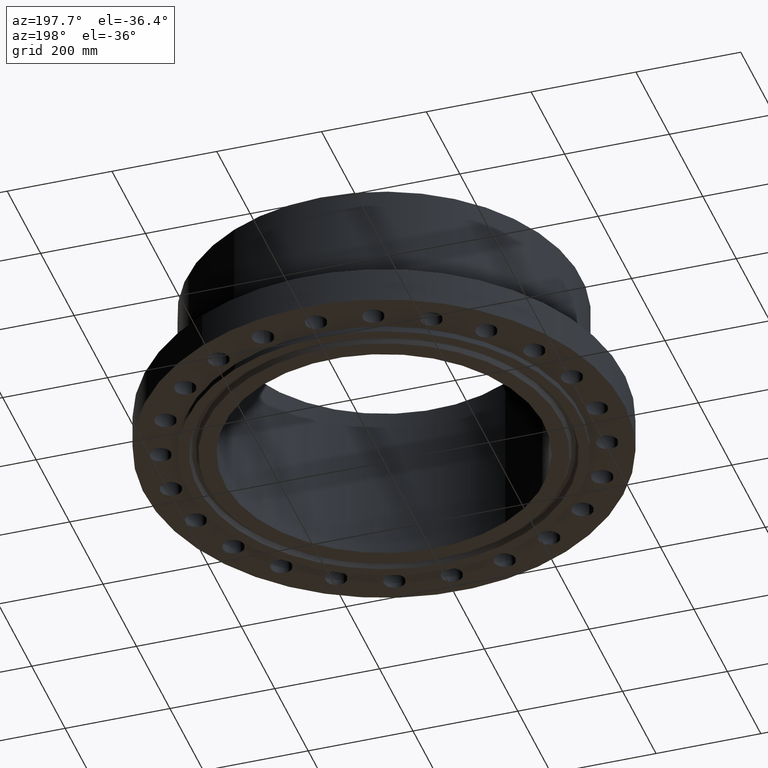
[diagram: clean part render]
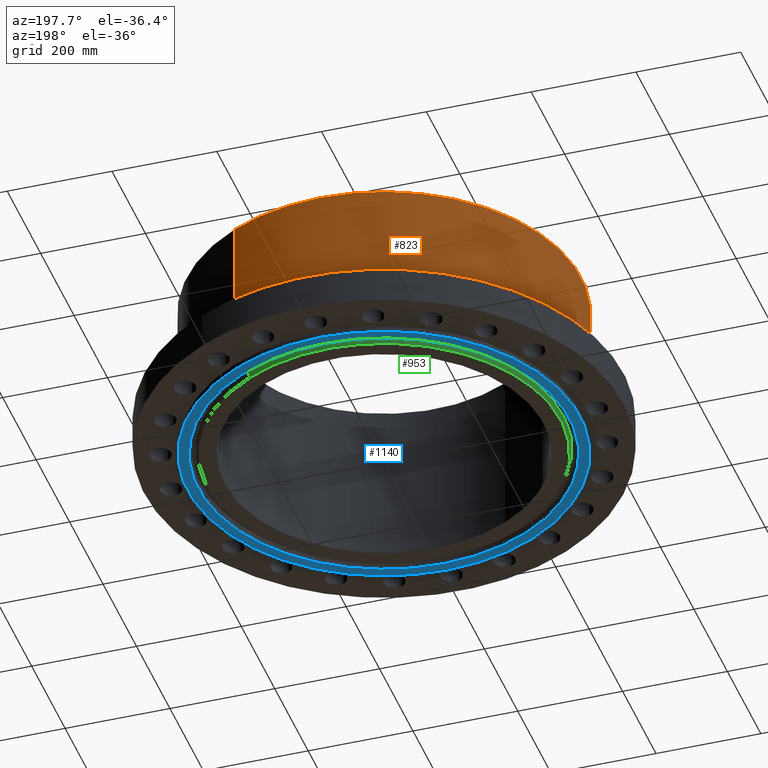
[diagram: same view with three faces highlighted in distinct colors, each labeled with its STEP entity id]
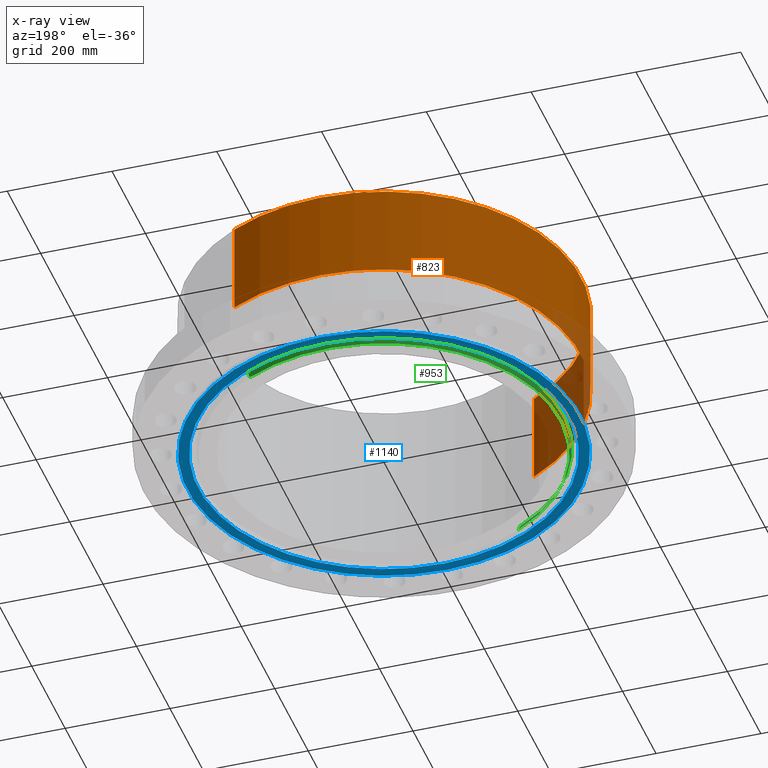
[diagram: x-ray of the same camera — body ghosted, the three highlighted faces saturated]
A machine part, auxiliary view with three faces highlighted in distinct colors.
The next image is the same camera in x-ray (body ghosted, the three faces saturated) — at least one of them is partly hidden behind the body in this view.
Their STEP definitions:

[orange] entity #823 — the highlighted cylindrical surface (partial cylindrical patch) has radius 376.174 mm, axis along (0, 0, -1).
#771=AXIS2_PLACEMENT_3D('Circle Axis2P3D',#769,#770,$) ;
#784=AXIS2_PLACEMENT_3D('Cylinder Axis2P3D',#781,#782,#783) ;
#814=AXIS2_PLACEMENT_3D('Circle Axis2P3D',#812,#813,$) ;
#747=CARTESIAN_POINT('Vertex',(7.10029222676,12.9969977416,5.01485026921)) ;
#754=CARTESIAN_POINT('Vertex',(-7.10029222676,-12.9969977416,5.01485026921)) ;
#769=CARTESIAN_POINT('Axis2P3D Location',(0.,0.,5.01485026921)) ;
#781=CARTESIAN_POINT('Axis2P3D Location',(0.,0.,5.74975000002)) ;
#786=CARTESIAN_POINT('Line Origine',(7.10029222676,12.9969977416,8.47617513463)) ;
#790=CARTESIAN_POINT('Vertex',(7.10029222676,12.9969977416,11.9375)) ;
#797=CARTESIAN_POINT('Vertex',(-7.10029222676,-12.9969977416,11.9375)) ;
#800=CARTESIAN_POINT('Line Origine',(-7.10029222676,-12.9969977416,8.47617513463)) ;
#812=CARTESIAN_POINT('Axis2P3D Location',(0.,0.,11.9375)) ;
#770=DIRECTION('Axis2P3D Direction',(-0.,0.,0.0393700787402)) ;
#782=DIRECTION('Axis2P3D Direction',(0.,0.,-0.0393700787402)) ;
#783=DIRECTION('Axis2P3D XDirection',(-0.0188750212049,-0.0345504945626,0.)) ;
#787=DIRECTION('Vector Direction',(0.,0.,-0.0393700787402)) ;
#801=DIRECTION('Vector Direction',(0.,0.,-0.0393700787402)) ;
#813=DIRECTION('Axis2P3D Direction',(0.,0.,-0.0393700787402)) ;
#788=VECTOR('Line Direction',#787,0.0393700787402) ;
#802=VECTOR('Line Direction',#801,0.0393700787402) ;
#818=ORIENTED_EDGE('',*,*,#773,.F.) ;
#819=ORIENTED_EDGE('',*,*,#804,.T.) ;
#820=ORIENTED_EDGE('',*,*,#816,.T.) ;
#821=ORIENTED_EDGE('',*,*,#792,.F.) ;
#823=ADVANCED_FACE('PartBody',(#822),#785,.T.) ;
#772=CIRCLE('generated circle',#771,14.8100000001) ;
#815=CIRCLE('generated circle',#814,14.8100000001) ;
#785=CYLINDRICAL_SURFACE('generated cylinder',#784,14.8100000001) ;
#773=EDGE_CURVE('',#755,#748,#772,.F.) ;
#792=EDGE_CURVE('',#748,#791,#789,.F.) ;
#804=EDGE_CURVE('',#755,#798,#803,.F.) ;
#816=EDGE_CURVE('',#798,#791,#815,.T.) ;
#817=EDGE_LOOP('',(#818,#819,#820,#821)) ;
#822=FACE_OUTER_BOUND('',#817,.T.) ;
#789=LINE('Line',#786,#788) ;
#803=LINE('Line',#800,#802) ;
#748=VERTEX_POINT('',#747) ;
#755=VERTEX_POINT('',#754) ;
#791=VERTEX_POINT('',#790) ;
#798=VERTEX_POINT('',#797) ;

[blue] entity #1140 — the highlighted planar face has unit normal (0, 0, -1).
#898=AXIS2_PLACEMENT_3D('Plane Axis2P3D',#895,#896,#897) ;
#1089=AXIS2_PLACEMENT_3D('Circle Axis2P3D',#1087,#1088,$) ;
#1108=AXIS2_PLACEMENT_3D('Circle Axis2P3D',#1106,#1107,$) ;
#1120=AXIS2_PLACEMENT_3D('Circle Axis2P3D',#1118,#1119,$) ;
#1129=AXIS2_PLACEMENT_3D('Circle Axis2P3D',#1127,#1128,$) ;
#895=CARTESIAN_POINT('Axis2P3D Location',(0.,13.2970000001,-0.438000000002)) ;
#1084=CARTESIAN_POINT('Vertex',(-6.68942454017,-12.2449094861,-0.438000000002)) ;
#1087=CARTESIAN_POINT('Axis2P3D Location',(0.,0.,-0.438000000002)) ;
#1091=CARTESIAN_POINT('Vertex',(6.68942454017,12.2449094861,-0.438000000002)) ;
#1106=CARTESIAN_POINT('Axis2P3D Location',(0.,0.,-0.438000000002)) ;
#1118=CARTESIAN_POINT('Axis2P3D Location',(0.,0.,-0.438000000002)) ;
#1122=CARTESIAN_POINT('Vertex',(-7.07152669444,-12.9443427879,-0.438000000002)) ;
#1124=CARTESIAN_POINT('Vertex',(7.07152669444,12.9443427879,-0.438000000002)) ;
#1127=CARTESIAN_POINT('Axis2P3D Location',(0.,0.,-0.438000000002)) ;
#896=DIRECTION('Axis2P3D Direction',(0.,0.,-0.0393700787402)) ;
#897=DIRECTION('Axis2P3D XDirection',(0.0393700787402,0.,0.)) ;
#1088=DIRECTION('Axis2P3D Direction',(0.,0.,-0.0393700787402)) ;
#1107=DIRECTION('Axis2P3D Direction',(0.,0.,-0.0393700787402)) ;
#1119=DIRECTION('Axis2P3D Direction',(0.,0.,-0.0393700787402)) ;
#1128=DIRECTION('Axis2P3D Direction',(0.,0.,-0.0393700787402)) ;
#1133=ORIENTED_EDGE('',*,*,#1126,.T.) ;
#1134=ORIENTED_EDGE('',*,*,#1131,.T.) ;
#1137=ORIENTED_EDGE('',*,*,#1110,.F.) ;
#1138=ORIENTED_EDGE('',*,*,#1093,.F.) ;
#1139=FACE_BOUND('',#1136,.T.) ;
#1140=ADVANCED_FACE('PartBody',(#1135,#1139),#899,.T.) ;
#1090=CIRCLE('generated circle',#1089,13.9530000001) ;
#1109=CIRCLE('generated circle',#1108,13.9530000001) ;
#1121=CIRCLE('generated circle',#1120,14.7500000001) ;
#1130=CIRCLE('generated circle',#1129,14.7500000001) ;
#1093=EDGE_CURVE('',#1085,#1092,#1090,.T.) ;
#1110=EDGE_CURVE('',#1092,#1085,#1109,.T.) ;
#1126=EDGE_CURVE('',#1123,#1125,#1121,.T.) ;
#1131=EDGE_CURVE('',#1125,#1123,#1130,.T.) ;
#1132=EDGE_LOOP('',(#1133,#1134)) ;
#1136=EDGE_LOOP('',(#1137,#1138)) ;
#1135=FACE_OUTER_BOUND('',#1132,.T.) ;
#899=PLANE('',#898) ;
#1085=VERTEX_POINT('',#1084) ;
#1092=VERTEX_POINT('',#1091) ;
#1123=VERTEX_POINT('',#1122) ;
#1125=VERTEX_POINT('',#1124) ;

[green] entity #953 — the highlighted conical surface has half-angle 23 deg.
#902=AXIS2_PLACEMENT_3D('Circle Axis2P3D',#900,#901,$) ;
#926=AXIS2_PLACEMENT_3D('Cone Axis2P3D',#923,#924,#925) ;
#937=AXIS2_PLACEMENT_3D('Circle Axis2P3D',#935,#936,$) ;
#900=CARTESIAN_POINT('Axis2P3D Location',(0.,0.,-0.438000000002)) ;
#904=CARTESIAN_POINT('Vertex',(-6.37492138685,-11.6692153255,-0.438000000002)) ;
#906=CARTESIAN_POINT('Vertex',(6.37492138685,11.6692153255,-0.438000000002)) ;
#923=CARTESIAN_POINT('Axis2P3D Location',(0.,0.,-0.438000000002)) ;
#928=CARTESIAN_POINT('Line Origine',(-6.41558313376,-11.743646154,-0.238191969454)) ;
#932=CARTESIAN_POINT('Vertex',(-6.45624488067,-11.8180769824,-0.0383839389053)) ;
#935=CARTESIAN_POINT('Axis2P3D Location',(0.,0.,-0.0383839389053)) ;
#939=CARTESIAN_POINT('Vertex',(6.45624488067,11.8180769824,-0.0383839389053)) ;
#942=CARTESIAN_POINT('Line Origine',(6.41558313376,11.743646154,-0.238191969454)) ;
#901=DIRECTION('Axis2P3D Direction',(0.,0.,-0.0393700787402)) ;
#924=DIRECTION('Axis2P3D Direction',(-0.,-0.,0.0393700787402)) ;
#925=DIRECTION('Axis2P3D XDirection',(-0.0188750212049,-0.0345504945626,0.)) ;
#929=DIRECTION('Vector Direction',(-0.00737505833565,-0.0134999537303,0.0362403485611)) ;
#936=DIRECTION('Axis2P3D Direction',(-0.,0.,0.0393700787402)) ;
#943=DIRECTION('Vector Direction',(0.00737505833565,0.0134999537303,0.0362403485611)) ;
#930=VECTOR('Line Direction',#929,0.0393700787402) ;
#944=VECTOR('Line Direction',#943,0.0393700787402) ;
#948=ORIENTED_EDGE('',*,*,#908,.F.) ;
#949=ORIENTED_EDGE('',*,*,#934,.T.) ;
#950=ORIENTED_EDGE('',*,*,#941,.T.) ;
#951=ORIENTED_EDGE('',*,*,#946,.F.) ;
#953=ADVANCED_FACE('PartBody',(#952),#927,.T.) ;
#903=CIRCLE('generated circle',#902,13.2970000001) ;
#938=CIRCLE('generated circle',#937,13.4666269541) ;
#927=CONICAL_SURFACE('Cone',#926,13.2970000001,0.401425727959) ;
#908=EDGE_CURVE('',#905,#907,#903,.T.) ;
#934=EDGE_CURVE('',#905,#933,#931,.T.) ;
#941=EDGE_CURVE('',#933,#940,#938,.F.) ;
#946=EDGE_CURVE('',#907,#940,#945,.T.) ;
#947=EDGE_LOOP('',(#948,#949,#950,#951)) ;
#952=FACE_OUTER_BOUND('',#947,.T.) ;
#931=LINE('Line',#928,#930) ;
#945=LINE('Line',#942,#944) ;
#905=VERTEX_POINT('',#904) ;
#907=VERTEX_POINT('',#906) ;
#933=VERTEX_POINT('',#932) ;
#940=VERTEX_POINT('',#939) ;